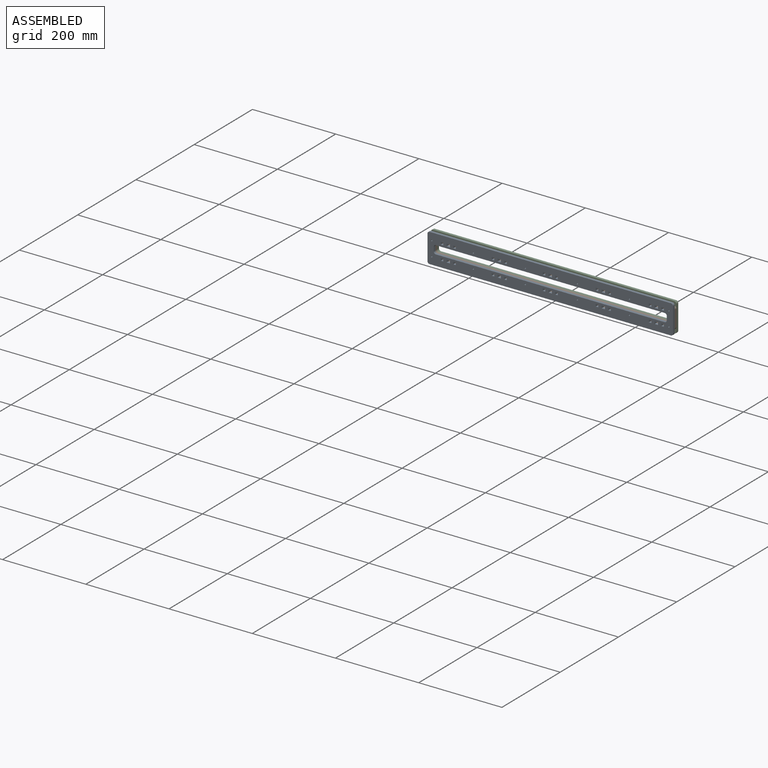
[diagram: assembled view]
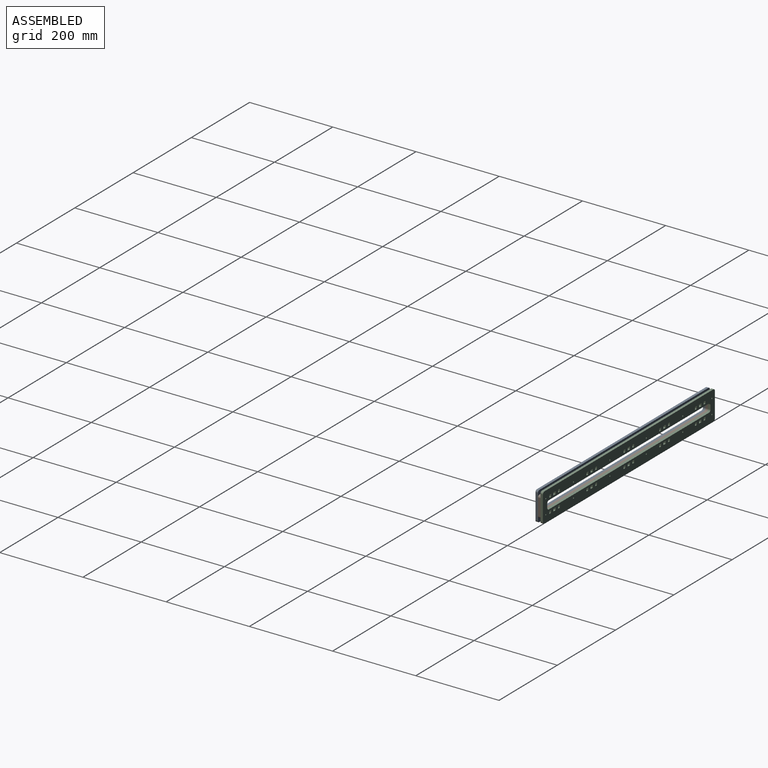
[diagram: assembled view, second angle]
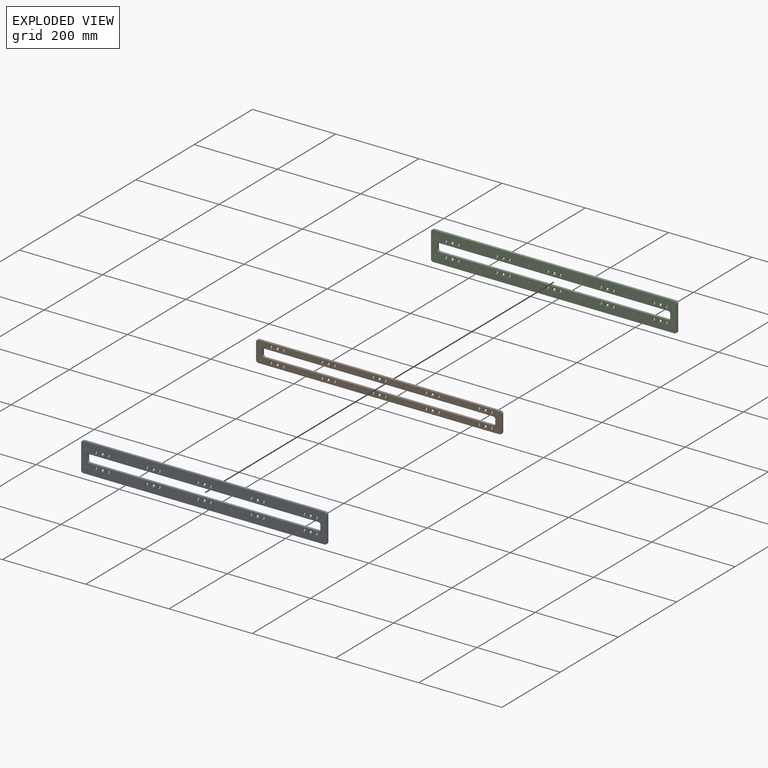
[diagram: exploded view]
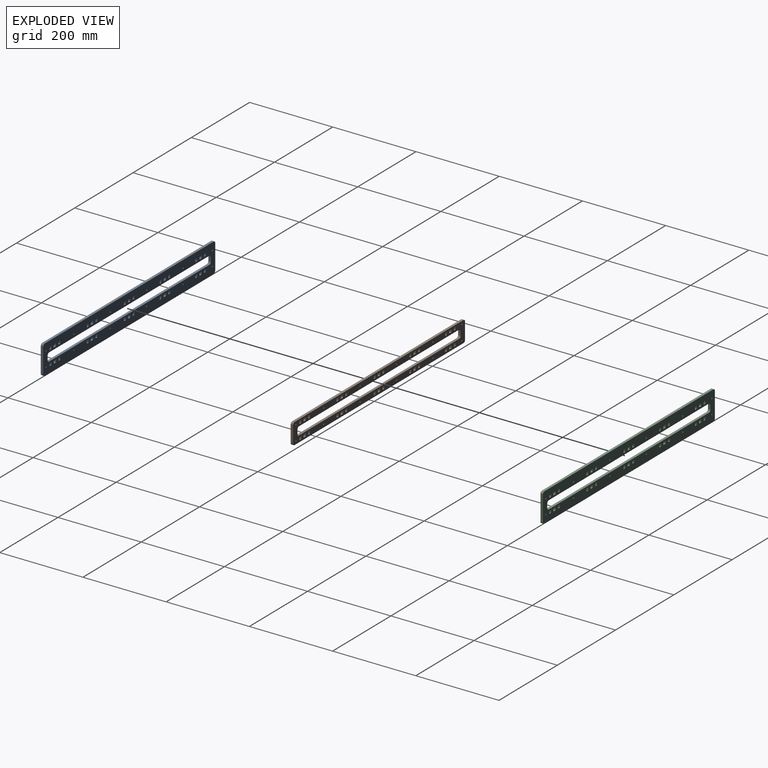
[diagram: exploded view, second angle]
ASSEMBLY  parts=3 mates=2
PART A: 150 faces, bbox 590x6x70 mm
  f0: plane 6x6mm, normal (1,0,0), area 36mm2, adj f1,f109,f148,f149
  f1: plane 6x6mm, normal (0,0,-1), area 36mm2, adj f0,f2,f148,f149
  f2: plane 6x6mm, normal (-1,0,0), area 36mm2, adj f1,f109,f148,f149
  f3: plane 6x6mm, normal (1,0,0), area 36mm2, adj f4,f110,f148,f149
  f4: plane 6x6mm, normal (0,0,-1), area 36mm2, adj f3,f5,f148,f149
  f5: plane 6x6mm, normal (-1,0,0), area 36mm2, adj f4,f110,f148,f149
  f6: plane 6x6mm, normal (1,0,0), area 36mm2, adj f7,f111,f148,f149
  f7: plane 6x6mm, normal (0,0,-1), area 36mm2, adj f6,f8,f148,f149
  f8: plane 6x6mm, normal (-1,0,0), area 36mm2, adj f7,f111,f148,f149
  f9: plane 6x6mm, normal (1,0,0), area 36mm2, adj f10,f112,f148,f149
  f10: plane 6x6mm, normal (0,0,-1), area 36mm2, adj f9,f11,f148,f149
  f11: plane 6x6mm, normal (-1,0,0), area 36mm2, adj f10,f112,f148,f149
  f12: plane 6x6mm, normal (1,0,0), area 36mm2, adj f13,f113,f148,f149
  f13: plane 6x6mm, normal (0,0,-1), area 36mm2, adj f12,f14,f148,f149
  f14: plane 6x6mm, normal (-1,0,0), area 36mm2, adj f13,f113,f148,f149
  f15: plane 6x6mm, normal (-1,0,0), area 36mm2, adj f16,f114,f148,f149
  f16: plane 6x6mm, normal (0,0,1), area 36mm2, adj f15,f17,f148,f149
  f17: plane 6x6mm, normal (1,0,0), area 36mm2, adj f16,f114,f148,f149
  f18: plane 6x6mm, normal (-1,0,0), area 36mm2, adj f19,f115,f148,f149
  f19: plane 8x6mm, normal (0,0,1), area 48mm2, adj f18,f20,f148,f149
  f20: plane 6x6mm, normal (1,0,0), area 36mm2, adj f19,f115,f148,f149
  f21: plane 6x6mm, normal (-1,0,0), area 36mm2, adj f22,f116,f148,f149
  f22: plane 6x6mm, normal (0,0,1), area 36mm2, adj f21,f23,f148,f149
  f23: plane 6x6mm, normal (1,0,0), area 36mm2, adj f22,f116,f148,f149
  f24: plane 6x6mm, normal (-1,0,0), area 36mm2, adj f25,f117,f148,f149
  f25: plane 8x6mm, normal (0,0,1), area 48mm2, adj f24,f26,f148,f149
  f26: plane 6x6mm, normal (1,0,0), area 36mm2, adj f25,f117,f148,f149
  f27: plane 6x6mm, normal (-1,0,0), area 36mm2, adj f28,f118,f148,f149
  f28: plane 6x6mm, normal (0,0,1), area 36mm2, adj f27,f29,f148,f149
  f29: plane 6x6mm, normal (1,0,0), area 36mm2, adj f28,f118,f148,f149
  f30: plane 6x6mm, normal (-1,0,0), area 36mm2, adj f31,f119,f148,f149
  f31: plane 8x6mm, normal (0,0,1), area 48mm2, adj f30,f32,f148,f149
  f32: plane 6x6mm, normal (1,0,0), area 36mm2, adj f31,f119,f148,f149
  f33: plane 6x6mm, normal (-1,0,0), area 36mm2, adj f34,f120,f148,f149
  f34: plane 6x6mm, normal (0,0,1), area 36mm2, adj f33,f35,f148,f149
  f35: plane 6x6mm, normal (1,0,0), area 36mm2, adj f34,f120,f148,f149
  f36: plane 6x6mm, normal (-1,0,0), area 36mm2, adj f37,f121,f148,f149
  f37: plane 8x6mm, normal (0,0,1), area 48mm2, adj f36,f38,f148,f149
  f38: plane 6x6mm, normal (1,0,0), area 36mm2, adj f37,f121,f148,f149
  f39: plane 6x6mm, normal (-1,0,0), area 36mm2, adj f40,f122,f148,f149
  f40: plane 6x6mm, normal (0,0,1), area 36mm2, adj f39,f41,f148,f149
  f41: plane 6x6mm, normal (1,0,0), area 36mm2, adj f40,f122,f148,f149
  f42: plane 6x6mm, normal (-1,0,0), area 36mm2, adj f43,f123,f148,f149
  f43: plane 8x6mm, normal (0,0,1), area 48mm2, adj f42,f44,f148,f149
  f44: plane 6x6mm, normal (1,0,0), area 36mm2, adj f43,f123,f148,f149
  f45: plane 10x6mm, normal (1,0,0), area 60mm2, adj f46,f124,f148,f149
  f46: cylinder r=5mm len=6mm, axis (0,1,0), area 47.1mm2, adj f45,f47,f148,f149
  f47: plane 550x6mm, normal (0,0,-1), area 3300mm2, adj f46,f48,f148,f149
  f48: cylinder r=5mm len=6mm, axis (0,1,0), area 47.1mm2, adj f47,f49,f148,f149
  f49: plane 10x6mm, normal (-1,0,0), area 60mm2, adj f48,f50,f148,f149
  f50: cylinder r=5mm len=6mm, axis (0,1,0), area 47.1mm2, adj f49,f51,f148,f149
  f51: plane 550x6mm, normal (0,0,1), area 3300mm2, adj f50,f124,f148,f149
  f52: cylinder r=5mm len=6mm, axis (0,1,0), area 47.1mm2, adj f53,f125,f148,f149
  f53: plane 580x6mm, normal (0,0,-1), area 3480mm2, adj f52,f54,f148,f149
  f54: cylinder r=5mm len=6mm, axis (0,1,0), area 47.1mm2, adj f53,f55,f148,f149
  f55: plane 60x6mm, normal (1,0,0), area 360mm2, adj f54,f56,f148,f149
  f56: cylinder r=5mm len=6mm, axis (0,1,0), area 47.1mm2, adj f55,f57,f148,f149
  f57: plane 580x6mm, normal (0,0,1), area 3480mm2, adj f56,f58,f148,f149
  f58: cylinder r=5mm len=6mm, axis (0,1,0), area 47.1mm2, adj f57,f125,f148,f149
  f59: plane 6x6mm, normal (0,0,1), area 36mm2, adj f60,f126,f148,f149
  f60: plane 6x6mm, normal (1,0,0), area 36mm2, adj f59,f61,f148,f149
  f61: plane 6x6mm, normal (0,0,-1), area 36mm2, adj f60,f126,f148,f149
  f62: plane 6x6mm, normal (0,0,1), area 36mm2, adj f63,f127,f148,f149
  f63: plane 6x6mm, normal (1,0,0), area 36mm2, adj f62,f64,f148,f149
  f64: plane 6x6mm, normal (0,0,-1), area 36mm2, adj f63,f127,f148,f149
  f65: plane 6x6mm, normal (0,0,1), area 36mm2, adj f66,f128,f148,f149
  f66: plane 6x6mm, normal (1,0,0), area 36mm2, adj f65,f67,f148,f149
  f67: plane 6x6mm, normal (0,0,-1), area 36mm2, adj f66,f128,f148,f149
  f68: plane 6x6mm, normal (0,0,1), area 36mm2, adj f69,f129,f148,f149
  f69: plane 6x6mm, normal (1,0,0), area 36mm2, adj f68,f70,f148,f149
  f70: plane 6x6mm, normal (0,0,-1), area 36mm2, adj f69,f129,f148,f149
  f71: plane 6x6mm, normal (0,0,1), area 36mm2, adj f72,f130,f148,f149
  f72: plane 6x6mm, normal (1,0,0), area 36mm2, adj f71,f73,f148,f149
  f73: plane 6x6mm, normal (0,0,-1), area 36mm2, adj f72,f130,f148,f149
  f74: plane 8x6mm, normal (0,0,-1), area 48mm2, adj f75,f131,f148,f149
  f75: plane 6x6mm, normal (-1,0,0), area 36mm2, adj f74,f76,f148,f149
  f76: plane 8x6mm, normal (0,0,1), area 48mm2, adj f75,f131,f148,f149
  f77: plane 6x6mm, normal (0,0,-1), area 36mm2, adj f78,f132,f148,f149
  f78: plane 6x6mm, normal (-1,0,0), area 36mm2, adj f77,f79,f148,f149
  f79: plane 6x6mm, normal (0,0,1), area 36mm2, adj f78,f132,f148,f149
  f80: plane 8x6mm, normal (0,0,-1), area 48mm2, adj f81,f133,f148,f149
  f81: plane 6x6mm, normal (-1,0,0), area 36mm2, adj f80,f82,f148,f149
  f82: plane 8x6mm, normal (0,0,1), area 48mm2, adj f81,f133,f148,f149
  f83: plane 6x6mm, normal (0,0,-1), area 36mm2, adj f84,f134,f148,f149
  f84: plane 6x6mm, normal (-1,0,0), area 36mm2, adj f83,f85,f148,f149
  f85: plane 6x6mm, normal (0,0,1), area 36mm2, adj f84,f134,f148,f149
  f86: plane 8x6mm, normal (0,0,-1), area 48mm2, adj f87,f135,f148,f149
  f87: plane 6x6mm, normal (-1,0,0), area 36mm2, adj f86,f88,f148,f149
  f88: plane 8x6mm, normal (0,0,1), area 48mm2, adj f87,f135,f148,f149
  f89: plane 6x6mm, normal (0,0,-1), area 36mm2, adj f90,f136,f148,f149
  f90: plane 6x6mm, normal (-1,0,0), area 36mm2, adj f89,f91,f148,f149
  f91: plane 6x6mm, normal (0,0,1), area 36mm2, adj f90,f136,f148,f149
  f92: plane 8x6mm, normal (0,0,-1), area 48mm2, adj f93,f137,f148,f149
  f93: plane 6x6mm, normal (-1,0,0), area 36mm2, adj f92,f94,f148,f149
  f94: plane 8x6mm, normal (0,0,1), area 48mm2, adj f93,f137,f148,f149
  f95: plane 6x6mm, normal (0,0,-1), area 36mm2, adj f96,f138,f148,f149
  f96: plane 6x6mm, normal (-1,0,0), area 36mm2, adj f95,f97,f148,f149
  f97: plane 6x6mm, normal (0,0,1), area 36mm2, adj f96,f138,f148,f149
  f98: plane 8x6mm, normal (0,0,-1), area 48mm2, adj f99,f139,f148,f149
  f99: plane 6x6mm, normal (-1,0,0), area 36mm2, adj f98,f100,f148,f149
  f100: plane 8x6mm, normal (0,0,1), area 48mm2, adj f99,f139,f148,f149
  f101: plane 6x6mm, normal (0,0,-1), area 36mm2, adj f102,f140,f148,f149
  f102: plane 6x6mm, normal (-1,0,0), area 36mm2, adj f101,f103,f148,f149
  f103: plane 6x6mm, normal (0,0,1), area 36mm2, adj f102,f140,f148,f149
  f104: cylinder r=1.55mm len=6mm, axis (0,1,0), area 58.4mm2, adj f148,f149
  f105: cylinder r=1.55mm len=6mm, axis (0,1,0), area 58.4mm2, adj f148,f149
  f106: cylinder r=1.55mm len=6mm, axis (0,1,0), area 58.4mm2, adj f148,f149
  f107: cylinder r=1.55mm len=6mm, axis (0,1,0), area 58.4mm2, adj f148,f149
  f108: cylinder r=1.55mm len=6mm, axis (0,1,0), area 58.4mm2, adj f148,f149
  f109: plane 6x6mm, normal (0,0,1), area 36mm2, adj f0,f2,f148,f149
  f110: plane 6x6mm, normal (0,0,1), area 36mm2, adj f3,f5,f148,f149
  f111: plane 6x6mm, normal (0,0,1), area 36mm2, adj f6,f8,f148,f149
  f112: plane 6x6mm, normal (0,0,1), area 36mm2, adj f9,f11,f148,f149
  f113: plane 6x6mm, normal (0,0,1), area 36mm2, adj f12,f14,f148,f149
  f114: plane 6x6mm, normal (0,0,-1), area 36mm2, adj f15,f17,f148,f149
  f115: plane 8x6mm, normal (0,0,-1), area 48mm2, adj f18,f20,f148,f149
  f116: plane 6x6mm, normal (0,0,-1), area 36mm2, adj f21,f23,f148,f149
  f117: plane 8x6mm, normal (0,0,-1), area 48mm2, adj f24,f26,f148,f149
  f118: plane 6x6mm, normal (0,0,-1), area 36mm2, adj f27,f29,f148,f149
  f119: plane 8x6mm, normal (0,0,-1), area 48mm2, adj f30,f32,f148,f149
  f120: plane 6x6mm, normal (0,0,-1), area 36mm2, adj f33,f35,f148,f149
  f121: plane 8x6mm, normal (0,0,-1), area 48mm2, adj f36,f38,f148,f149
  f122: plane 6x6mm, normal (0,0,-1), area 36mm2, adj f39,f41,f148,f149
  f123: plane 8x6mm, normal (0,0,-1), area 48mm2, adj f42,f44,f148,f149
  f124: cylinder r=5mm len=6mm, axis (0,1,0), area 47.1mm2, adj f45,f51,f148,f149
  f125: plane 60x6mm, normal (-1,0,0), area 360mm2, adj f52,f58,f148,f149
  f126: plane 6x6mm, normal (-1,0,0), area 36mm2, adj f59,f61,f148,f149
  f127: plane 6x6mm, normal (-1,0,0), area 36mm2, adj f62,f64,f148,f149
  f128: plane 6x6mm, normal (-1,0,0), area 36mm2, adj f65,f67,f148,f149
  f129: plane 6x6mm, normal (-1,0,0), area 36mm2, adj f68,f70,f148,f149
  f130: plane 6x6mm, normal (-1,0,0), area 36mm2, adj f71,f73,f148,f149
  f131: plane 6x6mm, normal (1,0,0), area 36mm2, adj f74,f76,f148,f149
  f132: plane 6x6mm, normal (1,0,0), area 36mm2, adj f77,f79,f148,f149
  f133: plane 6x6mm, normal (1,0,0), area 36mm2, adj f80,f82,f148,f149
  f134: plane 6x6mm, normal (1,0,0), area 36mm2, adj f83,f85,f148,f149
  f135: plane 6x6mm, normal (1,0,0), area 36mm2, adj f86,f88,f148,f149
  f136: plane 6x6mm, normal (1,0,0), area 36mm2, adj f89,f91,f148,f149
  f137: plane 6x6mm, normal (1,0,0), area 36mm2, adj f92,f94,f148,f149
  f138: plane 6x6mm, normal (1,0,0), area 36mm2, adj f95,f97,f148,f149
  f139: plane 6x6mm, normal (1,0,0), area 36mm2, adj f98,f100,f148,f149
  f140: plane 6x6mm, normal (1,0,0), area 36mm2, adj f101,f103,f148,f149
  f141: cylinder r=1.55mm len=6mm, axis (0,1,0), area 58.4mm2, adj f148,f149
  f142: cylinder r=1.55mm len=6mm, axis (0,1,0), area 58.4mm2, adj f148,f149
  f143: cylinder r=1.55mm len=6mm, axis (0,1,0), area 58.4mm2, adj f148,f149
  f144: cylinder r=1.55mm len=6mm, axis (0,1,0), area 58.4mm2, adj f148,f149
  f145: cylinder r=1.55mm len=6mm, axis (0,1,0), area 58.4mm2, adj f148,f149
  f146: cylinder r=1.55mm len=6mm, axis (0,1,0), area 58.4mm2, adj f148,f149
  f147: cylinder r=1.55mm len=6mm, axis (0,1,0), area 58.4mm2, adj f148,f149
  f148: plane 590x70mm, normal (0,-1,0), area 28809.4mm2, adj f0,f1,f2,f3,f4,f5,f6,f7
  f149: plane 590x70mm, normal (0,1,0), area 28809.4mm2, adj f0,f1,f2,f3,f4,f5,f6,f7
PART B: 150 faces, bbox 590x6x50 mm
  f0: plane 6x6mm, normal (1,0,0), area 36mm2, adj f1,f109,f148,f149
  f1: plane 6x6mm, normal (0,0,-1), area 36mm2, adj f0,f2,f148,f149
  f2: plane 6x6mm, normal (-1,0,0), area 36mm2, adj f1,f109,f148,f149
  f3: plane 6x6mm, normal (1,0,0), area 36mm2, adj f4,f110,f148,f149
  f4: plane 6x6mm, normal (0,0,-1), area 36mm2, adj f3,f5,f148,f149
  f5: plane 6x6mm, normal (-1,0,0), area 36mm2, adj f4,f110,f148,f149
  f6: plane 6x6mm, normal (1,0,0), area 36mm2, adj f7,f111,f148,f149
  f7: plane 6x6mm, normal (0,0,-1), area 36mm2, adj f6,f8,f148,f149
  f8: plane 6x6mm, normal (-1,0,0), area 36mm2, adj f7,f111,f148,f149
  f9: plane 6x6mm, normal (1,0,0), area 36mm2, adj f10,f112,f148,f149
  f10: plane 6x6mm, normal (0,0,-1), area 36mm2, adj f9,f11,f148,f149
  f11: plane 6x6mm, normal (-1,0,0), area 36mm2, adj f10,f112,f148,f149
  f12: plane 6x6mm, normal (1,0,0), area 36mm2, adj f13,f113,f148,f149
  f13: plane 6x6mm, normal (0,0,-1), area 36mm2, adj f12,f14,f148,f149
  f14: plane 6x6mm, normal (-1,0,0), area 36mm2, adj f13,f113,f148,f149
  f15: plane 6x6mm, normal (-1,0,0), area 36mm2, adj f16,f114,f148,f149
  f16: plane 6x6mm, normal (0,0,1), area 36mm2, adj f15,f17,f148,f149
  f17: plane 6x6mm, normal (1,0,0), area 36mm2, adj f16,f114,f148,f149
  f18: plane 6x6mm, normal (-1,0,0), area 36mm2, adj f19,f115,f148,f149
  f19: plane 8x6mm, normal (0,0,1), area 48mm2, adj f18,f20,f148,f149
  f20: plane 6x6mm, normal (1,0,0), area 36mm2, adj f19,f115,f148,f149
  f21: plane 6x6mm, normal (-1,0,0), area 36mm2, adj f22,f116,f148,f149
  f22: plane 6x6mm, normal (0,0,1), area 36mm2, adj f21,f23,f148,f149
  f23: plane 6x6mm, normal (1,0,0), area 36mm2, adj f22,f116,f148,f149
  f24: plane 6x6mm, normal (-1,0,0), area 36mm2, adj f25,f117,f148,f149
  f25: plane 8x6mm, normal (0,0,1), area 48mm2, adj f24,f26,f148,f149
  f26: plane 6x6mm, normal (1,0,0), area 36mm2, adj f25,f117,f148,f149
  f27: plane 6x6mm, normal (-1,0,0), area 36mm2, adj f28,f118,f148,f149
  f28: plane 6x6mm, normal (0,0,1), area 36mm2, adj f27,f29,f148,f149
  f29: plane 6x6mm, normal (1,0,0), area 36mm2, adj f28,f118,f148,f149
  f30: plane 6x6mm, normal (-1,0,0), area 36mm2, adj f31,f119,f148,f149
  f31: plane 8x6mm, normal (0,0,1), area 48mm2, adj f30,f32,f148,f149
  f32: plane 6x6mm, normal (1,0,0), area 36mm2, adj f31,f119,f148,f149
  f33: plane 6x6mm, normal (-1,0,0), area 36mm2, adj f34,f120,f148,f149
  f34: plane 6x6mm, normal (0,0,1), area 36mm2, adj f33,f35,f148,f149
  f35: plane 6x6mm, normal (1,0,0), area 36mm2, adj f34,f120,f148,f149
  f36: plane 6x6mm, normal (-1,0,0), area 36mm2, adj f37,f121,f148,f149
  f37: plane 8x6mm, normal (0,0,1), area 48mm2, adj f36,f38,f148,f149
  f38: plane 6x6mm, normal (1,0,0), area 36mm2, adj f37,f121,f148,f149
  f39: plane 6x6mm, normal (-1,0,0), area 36mm2, adj f40,f122,f148,f149
  f40: plane 6x6mm, normal (0,0,1), area 36mm2, adj f39,f41,f148,f149
  f41: plane 6x6mm, normal (1,0,0), area 36mm2, adj f40,f122,f148,f149
  f42: plane 6x6mm, normal (-1,0,0), area 36mm2, adj f43,f123,f148,f149
  f43: plane 8x6mm, normal (0,0,1), area 48mm2, adj f42,f44,f148,f149
  f44: plane 6x6mm, normal (1,0,0), area 36mm2, adj f43,f123,f148,f149
  f45: plane 10x6mm, normal (1,0,0), area 60mm2, adj f46,f124,f148,f149
  f46: cylinder r=5mm len=6mm, axis (0,1,0), area 47.1mm2, adj f45,f47,f148,f149
  f47: plane 550x6mm, normal (0,0,-1), area 3300mm2, adj f46,f48,f148,f149
  f48: cylinder r=5mm len=6mm, axis (0,1,0), area 47.1mm2, adj f47,f49,f148,f149
  f49: plane 10x6mm, normal (-1,0,0), area 60mm2, adj f48,f50,f148,f149
  f50: cylinder r=5mm len=6mm, axis (0,1,0), area 47.1mm2, adj f49,f51,f148,f149
  f51: plane 550x6mm, normal (0,0,1), area 3300mm2, adj f50,f124,f148,f149
  f52: cylinder r=5mm len=6mm, axis (0,1,0), area 47.1mm2, adj f53,f125,f148,f149
  f53: plane 40x6mm, normal (-1,0,0), area 240mm2, adj f52,f54,f148,f149
  f54: cylinder r=5mm len=6mm, axis (0,1,0), area 47.1mm2, adj f53,f55,f148,f149
  f55: plane 580x6mm, normal (0,0,-1), area 3480mm2, adj f54,f56,f148,f149
  f56: cylinder r=5mm len=6mm, axis (0,1,0), area 47.1mm2, adj f55,f57,f148,f149
  f57: plane 40x6mm, normal (1,0,0), area 240mm2, adj f56,f58,f148,f149
  f58: cylinder r=5mm len=6mm, axis (0,1,0), area 47.1mm2, adj f57,f125,f148,f149
  f59: plane 6x6mm, normal (0,0,1), area 36mm2, adj f60,f126,f148,f149
  f60: plane 6x6mm, normal (1,0,0), area 36mm2, adj f59,f61,f148,f149
  f61: plane 6x6mm, normal (0,0,-1), area 36mm2, adj f60,f126,f148,f149
  f62: plane 6x6mm, normal (0,0,1), area 36mm2, adj f63,f127,f148,f149
  f63: plane 6x6mm, normal (1,0,0), area 36mm2, adj f62,f64,f148,f149
  f64: plane 6x6mm, normal (0,0,-1), area 36mm2, adj f63,f127,f148,f149
  f65: plane 6x6mm, normal (0,0,1), area 36mm2, adj f66,f128,f148,f149
  f66: plane 6x6mm, normal (1,0,0), area 36mm2, adj f65,f67,f148,f149
  f67: plane 6x6mm, normal (0,0,-1), area 36mm2, adj f66,f128,f148,f149
  f68: plane 6x6mm, normal (0,0,1), area 36mm2, adj f69,f129,f148,f149
  f69: plane 6x6mm, normal (1,0,0), area 36mm2, adj f68,f70,f148,f149
  f70: plane 6x6mm, normal (0,0,-1), area 36mm2, adj f69,f129,f148,f149
  f71: plane 6x6mm, normal (0,0,1), area 36mm2, adj f72,f130,f148,f149
  f72: plane 6x6mm, normal (1,0,0), area 36mm2, adj f71,f73,f148,f149
  f73: plane 6x6mm, normal (0,0,-1), area 36mm2, adj f72,f130,f148,f149
  f74: plane 8x6mm, normal (0,0,-1), area 48mm2, adj f75,f131,f148,f149
  f75: plane 6x6mm, normal (-1,0,0), area 36mm2, adj f74,f76,f148,f149
  f76: plane 8x6mm, normal (0,0,1), area 48mm2, adj f75,f131,f148,f149
  f77: plane 6x6mm, normal (0,0,-1), area 36mm2, adj f78,f132,f148,f149
  f78: plane 6x6mm, normal (-1,0,0), area 36mm2, adj f77,f79,f148,f149
  f79: plane 6x6mm, normal (0,0,1), area 36mm2, adj f78,f132,f148,f149
  f80: plane 8x6mm, normal (0,0,-1), area 48mm2, adj f81,f133,f148,f149
  f81: plane 6x6mm, normal (-1,0,0), area 36mm2, adj f80,f82,f148,f149
  f82: plane 8x6mm, normal (0,0,1), area 48mm2, adj f81,f133,f148,f149
  f83: plane 6x6mm, normal (0,0,-1), area 36mm2, adj f84,f134,f148,f149
  f84: plane 6x6mm, normal (-1,0,0), area 36mm2, adj f83,f85,f148,f149
  f85: plane 6x6mm, normal (0,0,1), area 36mm2, adj f84,f134,f148,f149
  f86: plane 8x6mm, normal (0,0,-1), area 48mm2, adj f87,f135,f148,f149
  f87: plane 6x6mm, normal (-1,0,0), area 36mm2, adj f86,f88,f148,f149
  f88: plane 8x6mm, normal (0,0,1), area 48mm2, adj f87,f135,f148,f149
  f89: plane 6x6mm, normal (0,0,-1), area 36mm2, adj f90,f136,f148,f149
  f90: plane 6x6mm, normal (-1,0,0), area 36mm2, adj f89,f91,f148,f149
  f91: plane 6x6mm, normal (0,0,1), area 36mm2, adj f90,f136,f148,f149
  f92: plane 8x6mm, normal (0,0,-1), area 48mm2, adj f93,f137,f148,f149
  f93: plane 6x6mm, normal (-1,0,0), area 36mm2, adj f92,f94,f148,f149
  f94: plane 8x6mm, normal (0,0,1), area 48mm2, adj f93,f137,f148,f149
  f95: plane 6x6mm, normal (0,0,-1), area 36mm2, adj f96,f138,f148,f149
  f96: plane 6x6mm, normal (-1,0,0), area 36mm2, adj f95,f97,f148,f149
  f97: plane 6x6mm, normal (0,0,1), area 36mm2, adj f96,f138,f148,f149
  f98: plane 8x6mm, normal (0,0,-1), area 48mm2, adj f99,f139,f148,f149
  f99: plane 6x6mm, normal (-1,0,0), area 36mm2, adj f98,f100,f148,f149
  f100: plane 8x6mm, normal (0,0,1), area 48mm2, adj f99,f139,f148,f149
  f101: plane 6x6mm, normal (0,0,-1), area 36mm2, adj f102,f140,f148,f149
  f102: plane 6x6mm, normal (-1,0,0), area 36mm2, adj f101,f103,f148,f149
  f103: plane 6x6mm, normal (0,0,1), area 36mm2, adj f102,f140,f148,f149
  f104: cylinder r=1.55mm len=6mm, axis (0,1,0), area 58.4mm2, adj f148,f149
  f105: cylinder r=1.55mm len=6mm, axis (0,1,0), area 58.4mm2, adj f148,f149
  f106: cylinder r=1.55mm len=6mm, axis (0,1,0), area 58.4mm2, adj f148,f149
  f107: cylinder r=1.55mm len=6mm, axis (0,1,0), area 58.4mm2, adj f148,f149
  f108: cylinder r=1.55mm len=6mm, axis (0,1,0), area 58.4mm2, adj f148,f149
  f109: plane 6x6mm, normal (0,0,1), area 36mm2, adj f0,f2,f148,f149
  f110: plane 6x6mm, normal (0,0,1), area 36mm2, adj f3,f5,f148,f149
  f111: plane 6x6mm, normal (0,0,1), area 36mm2, adj f6,f8,f148,f149
  f112: plane 6x6mm, normal (0,0,1), area 36mm2, adj f9,f11,f148,f149
  f113: plane 6x6mm, normal (0,0,1), area 36mm2, adj f12,f14,f148,f149
  f114: plane 6x6mm, normal (0,0,-1), area 36mm2, adj f15,f17,f148,f149
  f115: plane 8x6mm, normal (0,0,-1), area 48mm2, adj f18,f20,f148,f149
  f116: plane 6x6mm, normal (0,0,-1), area 36mm2, adj f21,f23,f148,f149
  f117: plane 8x6mm, normal (0,0,-1), area 48mm2, adj f24,f26,f148,f149
  f118: plane 6x6mm, normal (0,0,-1), area 36mm2, adj f27,f29,f148,f149
  f119: plane 8x6mm, normal (0,0,-1), area 48mm2, adj f30,f32,f148,f149
  f120: plane 6x6mm, normal (0,0,-1), area 36mm2, adj f33,f35,f148,f149
  f121: plane 8x6mm, normal (0,0,-1), area 48mm2, adj f36,f38,f148,f149
  f122: plane 6x6mm, normal (0,0,-1), area 36mm2, adj f39,f41,f148,f149
  f123: plane 8x6mm, normal (0,0,-1), area 48mm2, adj f42,f44,f148,f149
  f124: cylinder r=5mm len=6mm, axis (0,1,0), area 47.1mm2, adj f45,f51,f148,f149
  f125: plane 580x6mm, normal (0,0,1), area 3480mm2, adj f52,f58,f148,f149
  f126: plane 6x6mm, normal (-1,0,0), area 36mm2, adj f59,f61,f148,f149
  f127: plane 6x6mm, normal (-1,0,0), area 36mm2, adj f62,f64,f148,f149
  f128: plane 6x6mm, normal (-1,0,0), area 36mm2, adj f65,f67,f148,f149
  f129: plane 6x6mm, normal (-1,0,0), area 36mm2, adj f68,f70,f148,f149
  f130: plane 6x6mm, normal (-1,0,0), area 36mm2, adj f71,f73,f148,f149
  f131: plane 6x6mm, normal (1,0,0), area 36mm2, adj f74,f76,f148,f149
  f132: plane 6x6mm, normal (1,0,0), area 36mm2, adj f77,f79,f148,f149
  f133: plane 6x6mm, normal (1,0,0), area 36mm2, adj f80,f82,f148,f149
  f134: plane 6x6mm, normal (1,0,0), area 36mm2, adj f83,f85,f148,f149
  f135: plane 6x6mm, normal (1,0,0), area 36mm2, adj f86,f88,f148,f149
  f136: plane 6x6mm, normal (1,0,0), area 36mm2, adj f89,f91,f148,f149
  f137: plane 6x6mm, normal (1,0,0), area 36mm2, adj f92,f94,f148,f149
  f138: plane 6x6mm, normal (1,0,0), area 36mm2, adj f95,f97,f148,f149
  f139: plane 6x6mm, normal (1,0,0), area 36mm2, adj f98,f100,f148,f149
  f140: plane 6x6mm, normal (1,0,0), area 36mm2, adj f101,f103,f148,f149
  f141: cylinder r=1.55mm len=6mm, axis (0,1,0), area 58.4mm2, adj f148,f149
  f142: cylinder r=1.55mm len=6mm, axis (0,1,0), area 58.4mm2, adj f148,f149
  f143: cylinder r=1.55mm len=6mm, axis (0,1,0), area 58.4mm2, adj f148,f149
  f144: cylinder r=1.55mm len=6mm, axis (0,1,0), area 58.4mm2, adj f148,f149
  f145: cylinder r=1.55mm len=6mm, axis (0,1,0), area 58.4mm2, adj f148,f149
  f146: cylinder r=1.55mm len=6mm, axis (0,1,0), area 58.4mm2, adj f148,f149
  f147: cylinder r=1.55mm len=6mm, axis (0,1,0), area 58.4mm2, adj f148,f149
  f148: plane 590x50mm, normal (0,-1,0), area 17009.4mm2, adj f0,f1,f2,f3,f4,f5,f6,f7
  f149: plane 590x50mm, normal (0,1,0), area 17009.4mm2, adj f0,f1,f2,f3,f4,f5,f6,f7
PART C: same geometry as A
PLACE A at identity
PLACE B rot(axis=(1,0,0),180deg) t=(0,0,-44.84)mm
PLACE C t=(0,12,0)mm
MATE fastened C.f142 <-> B.f107  axis (0,-1,0) through (285,6,-70.5)mm
MATE fastened B.f107 <-> A.f142  axis (0,-1,0) through (285,0,-70.5)mm
